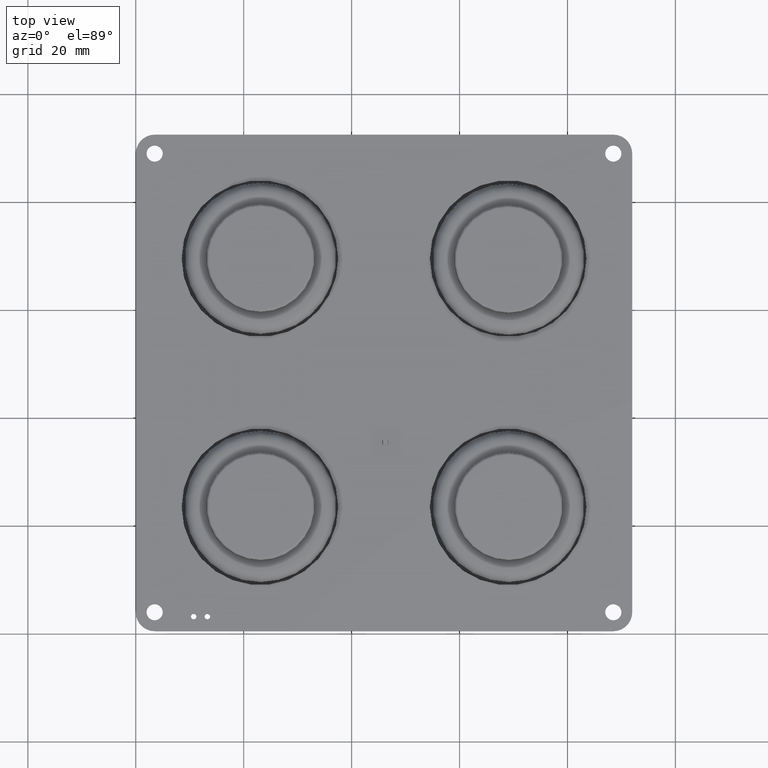
[diagram: clean part render]
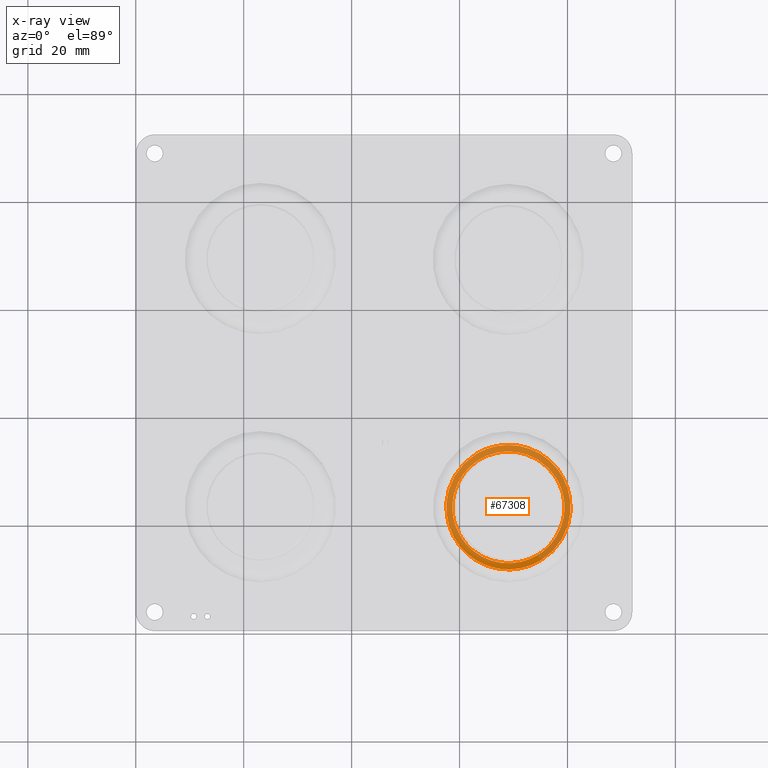
[diagram: x-ray — body ghosted, one internal face saturated and labeled with its STEP entity id]
A machine part, top view, then the same camera in x-ray: the body is ghosted and one INTERNAL B-rep face — a face not visible from any outside direction — is saturated and labeled: STEP entity #67308.
In plain terms, the highlighted face is a freeform B-spline surface patch.
Its self-contained STEP definition (entity closure, byte-faithful):
#65638 = VERTEX_POINT('',#65639);
#65639 = CARTESIAN_POINT('',(-11.5,6.500000005462,-1.54074395551E-30));
#65647 = EDGE_CURVE('',#65638,#65648,#65650,.T.);
#65648 = VERTEX_POINT('',#65649);
#65649 = CARTESIAN_POINT('',(-6.668400408273E-16,6.000000005462,-11.5));
#65650 = ( BOUNDED_CURVE() B_SPLINE_CURVE(2,(#65651,#65652,#65653,#65654
    ,#65655,#65656,#65657),.UNSPECIFIED.,.F.,.F.) 
B_SPLINE_CURVE_WITH_KNOTS((3,2,2,3),(0.,2.5E-02,5.E-02,6.25E-02),
.UNSPECIFIED.) CURVE() GEOMETRIC_REPRESENTATION_ITEM() 
RATIONAL_B_SPLINE_CURVE((1.,0.951056516295,1.,0.951056516295,1.,
0.975528258148,0.975528258148)) REPRESENTATION_ITEM('') );
#65651 = CARTESIAN_POINT('',(-11.5,6.500000005462,-1.54074395551E-30));
#65652 = CARTESIAN_POINT('',(-11.5,6.400000005462,-3.736576506678));
#65653 = CARTESIAN_POINT('',(-9.303695435312,6.300000005462,
    -6.759530401363));
#65654 = CARTESIAN_POINT('',(-7.107390870624,6.200000005462,
    -9.782484296048));
#65655 = CARTESIAN_POINT('',(-3.553695435312,6.100000005462,
    -10.93714993739));
#65656 = CARTESIAN_POINT('',(-1.821421063732,6.051254287009,-11.5));
#65657 = CARTESIAN_POINT('',(-6.668400408273E-16,6.000000005462,-11.5));
#65709 = VERTEX_POINT('',#65710);
#65710 = CARTESIAN_POINT('',(-6.668400408273E-16,4.000000005462,-11.5));
#65737 = VERTEX_POINT('',#65738);
#65738 = CARTESIAN_POINT('',(2.000520122482E-15,5.000000005462,11.5));
#65744 = EDGE_CURVE('',#65737,#65709,#65745,.T.);
#65745 = ( BOUNDED_CURVE() B_SPLINE_CURVE(2,(#65746,#65747,#65748,#65749
    ,#65750,#65751,#65752,#65753,#65754,#65755,#65756,#65757,#65758),
.UNSPECIFIED.,.F.,.F.) B_SPLINE_CURVE_WITH_KNOTS((3,2,2,2,2,2,3),(0.1875
,0.2,0.225,0.25,0.275,0.3,0.3125),.UNSPECIFIED.) CURVE() 
GEOMETRIC_REPRESENTATION_ITEM() RATIONAL_B_SPLINE_CURVE((0.975528258148,
    0.975528258148,1.,0.951056516295,1.,0.951056516295,1.,0.951056516295
    ,1.,0.951056516295,1.,0.975528258148,0.975528258148)) 
REPRESENTATION_ITEM('') );
#65746 = CARTESIAN_POINT('',(2.000520122482E-15,5.000000005462,11.5));
#65747 = CARTESIAN_POINT('',(-1.821421063732,4.948745723916,11.5));
#65748 = CARTESIAN_POINT('',(-3.553695435312,4.900000005462,
    10.937149937394));
#65749 = CARTESIAN_POINT('',(-7.107390870624,4.800000005462,
    9.782484296048));
#65750 = CARTESIAN_POINT('',(-9.303695435312,4.700000005462,
    6.759530401363));
#65751 = CARTESIAN_POINT('',(-11.5,4.600000005462,3.736576506678));
#65752 = CARTESIAN_POINT('',(-11.5,4.500000005462,-1.54074395551E-30));
#65753 = CARTESIAN_POINT('',(-11.5,4.400000005462,-3.736576506678));
#65754 = CARTESIAN_POINT('',(-9.303695435312,4.300000005462,
    -6.759530401363));
#65755 = CARTESIAN_POINT('',(-7.107390870624,4.200000005462,
    -9.782484296048));
#65756 = CARTESIAN_POINT('',(-3.553695435312,4.100000005462,
    -10.93714993739));
#65757 = CARTESIAN_POINT('',(-1.821421063732,4.051254287009,-11.5));
#65758 = CARTESIAN_POINT('',(-6.668400408273E-16,4.000000005462,-11.5));
#65769 = VERTEX_POINT('',#65770);
#65770 = CARTESIAN_POINT('',(-6.668400408273E-16,2.000000005462,-11.5));
#65797 = VERTEX_POINT('',#65798);
#65798 = CARTESIAN_POINT('',(2.000520122482E-15,3.000000005462,11.5));
#65804 = EDGE_CURVE('',#65797,#65769,#65805,.T.);
#65805 = ( BOUNDED_CURVE() B_SPLINE_CURVE(2,(#65806,#65807,#65808,#65809
    ,#65810,#65811,#65812,#65813,#65814,#65815,#65816,#65817,#65818),
.UNSPECIFIED.,.F.,.F.) B_SPLINE_CURVE_WITH_KNOTS((3,2,2,2,2,2,3),(0.4375
,0.45,0.475,0.5,0.525,0.55,0.5625),.UNSPECIFIED.) CURVE() 
GEOMETRIC_REPRESENTATION_ITEM() RATIONAL_B_SPLINE_CURVE((0.975528258148,
    0.975528258148,1.,0.951056516295,1.,0.951056516295,1.,0.951056516295
    ,1.,0.951056516295,1.,0.975528258148,0.975528258148)) 
REPRESENTATION_ITEM('') );
#65806 = CARTESIAN_POINT('',(2.000520122482E-15,3.000000005462,11.5));
#65807 = CARTESIAN_POINT('',(-1.821421063732,2.948745723916,11.5));
#65808 = CARTESIAN_POINT('',(-3.553695435312,2.900000005462,
    10.937149937394));
#65809 = CARTESIAN_POINT('',(-7.107390870624,2.800000005462,
    9.782484296048));
#65810 = CARTESIAN_POINT('',(-9.303695435312,2.700000005462,
    6.759530401363));
#65811 = CARTESIAN_POINT('',(-11.5,2.600000005462,3.736576506678));
#65812 = CARTESIAN_POINT('',(-11.5,2.500000005462,-1.54074395551E-30));
#65813 = CARTESIAN_POINT('',(-11.5,2.400000005462,-3.736576506678));
#65814 = CARTESIAN_POINT('',(-9.303695435312,2.300000005462,
    -6.759530401363));
#65815 = CARTESIAN_POINT('',(-7.107390870624,2.200000005462,
    -9.782484296048));
#65816 = CARTESIAN_POINT('',(-3.553695435312,2.100000005462,
    -10.93714993739));
#65817 = CARTESIAN_POINT('',(-1.821421063732,2.051254287009,-11.5));
#65818 = CARTESIAN_POINT('',(-6.668400408273E-16,2.000000005462,-11.5));
#65829 = VERTEX_POINT('',#65830);
#65830 = CARTESIAN_POINT('',(-0.119454989053,1.680076155466E-03,
    -11.49938223221));
#65878 = VERTEX_POINT('',#65879);
#65879 = CARTESIAN_POINT('',(2.000520122482E-15,1.000000005462,11.5));
#65885 = EDGE_CURVE('',#65878,#65829,#65886,.T.);
#65886 = ( BOUNDED_CURVE() B_SPLINE_CURVE(2,(#65887,#65888,#65889,#65890
    ,#65891,#65892,#65893,#65894,#65895,#65896,#65897,#65898,#65899),
.UNSPECIFIED.,.F.,.F.) B_SPLINE_CURVE_WITH_KNOTS((3,2,2,2,2,2,3),(0.6875
,0.7,0.725,0.75,0.775,0.8,0.81209024918),.UNSPECIFIED.) CURVE() 
GEOMETRIC_REPRESENTATION_ITEM() RATIONAL_B_SPLINE_CURVE((0.975528258148,
    0.975528258148,1.,0.951056516295,1.,0.951056516295,1.,0.951056516295
    ,1.,0.951056516295,1.,0.976330443451,0.975554553834)) 
REPRESENTATION_ITEM('') );
#65887 = CARTESIAN_POINT('',(2.000520122482E-15,1.000000005462,11.5));
#65888 = CARTESIAN_POINT('',(-1.821421063732,0.948745723916,11.5));
#65889 = CARTESIAN_POINT('',(-3.553695435312,0.900000005462,
    10.937149937394));
#65890 = CARTESIAN_POINT('',(-7.107390870624,0.800000005462,
    9.782484296048));
#65891 = CARTESIAN_POINT('',(-9.303695435312,0.700000005462,
    6.759530401363));
#65892 = CARTESIAN_POINT('',(-11.5,0.600000005462,3.736576506678));
#65893 = CARTESIAN_POINT('',(-11.5,0.500000005462,-1.54074395551E-30));
#65894 = CARTESIAN_POINT('',(-11.5,0.400000005462,-3.736576506678));
#65895 = CARTESIAN_POINT('',(-9.303695435312,0.300000005462,
    -6.759530401363));
#65896 = CARTESIAN_POINT('',(-7.107390870624,0.200000005462,
    -9.782484296048));
#65897 = CARTESIAN_POINT('',(-3.553695435312,0.100000005462,
    -10.93714993739));
#65898 = CARTESIAN_POINT('',(-1.879581769375,5.289091307078E-02,
    -11.48110244119));
#65899 = CARTESIAN_POINT('',(-0.119454989053,1.680076155466E-03,
    -11.49938223221));
#65968 = EDGE_CURVE('',#65648,#65737,#65969,.T.);
#65969 = ( BOUNDED_CURVE() B_SPLINE_CURVE(2,(#65970,#65971,#65972,#65973
    ,#65974,#65975,#65976,#65977,#65978,#65979,#65980,#65981,#65982),
.UNSPECIFIED.,.F.,.F.) B_SPLINE_CURVE_WITH_KNOTS((3,2,2,2,2,2,3),(
6.25E-02,7.5E-02,0.1,0.125,0.15,0.175,0.1875),.UNSPECIFIED.) CURVE() 
GEOMETRIC_REPRESENTATION_ITEM() RATIONAL_B_SPLINE_CURVE((0.975528258148,
    0.975528258148,1.,0.951056516295,1.,0.951056516295,1.,0.951056516295
    ,1.,0.951056516295,1.,0.975528258148,0.975528258148)) 
REPRESENTATION_ITEM('') );
#65970 = CARTESIAN_POINT('',(-6.668400408273E-16,6.000000005462,-11.5));
#65971 = CARTESIAN_POINT('',(1.821421063732,5.948745723916,-11.5));
#65972 = CARTESIAN_POINT('',(3.553695435312,5.900000005462,
    -10.93714993739));
#65973 = CARTESIAN_POINT('',(7.107390870624,5.800000005462,
    -9.782484296048));
#65974 = CARTESIAN_POINT('',(9.303695435312,5.700000005462,
    -6.759530401363));
#65975 = CARTESIAN_POINT('',(11.5,5.600000005462,-3.736576506678));
#65976 = CARTESIAN_POINT('',(11.5,5.500000005462,-1.408343819019E-15));
#65977 = CARTESIAN_POINT('',(11.5,5.400000005462,3.736576506678));
#65978 = CARTESIAN_POINT('',(9.303695435312,5.300000005462,
    6.759530401363));
#65979 = CARTESIAN_POINT('',(7.107390870624,5.200000005462,
    9.782484296048));
#65980 = CARTESIAN_POINT('',(3.553695435312,5.100000005462,
    10.937149937394));
#65981 = CARTESIAN_POINT('',(1.821421063732,5.051254287009,11.5));
#65982 = CARTESIAN_POINT('',(2.000520122482E-15,5.000000005462,11.5));
#66010 = EDGE_CURVE('',#65709,#65797,#66011,.T.);
#66011 = ( BOUNDED_CURVE() B_SPLINE_CURVE(2,(#66012,#66013,#66014,#66015
    ,#66016,#66017,#66018,#66019,#66020,#66021,#66022,#66023,#66024),
.UNSPECIFIED.,.F.,.F.) B_SPLINE_CURVE_WITH_KNOTS((3,2,2,2,2,2,3),(0.3125
,0.325,0.35,0.375,0.4,0.425,0.4375),.UNSPECIFIED.) CURVE() 
GEOMETRIC_REPRESENTATION_ITEM() RATIONAL_B_SPLINE_CURVE((0.975528258148,
    0.975528258148,1.,0.951056516295,1.,0.951056516295,1.,0.951056516295
    ,1.,0.951056516295,1.,0.975528258148,0.975528258148)) 
REPRESENTATION_ITEM('') );
#66012 = CARTESIAN_POINT('',(-6.668400408273E-16,4.000000005462,-11.5));
#66013 = CARTESIAN_POINT('',(1.821421063732,3.948745723916,-11.5));
#66014 = CARTESIAN_POINT('',(3.553695435312,3.900000005462,
    -10.93714993739));
#66015 = CARTESIAN_POINT('',(7.107390870624,3.800000005462,
    -9.782484296048));
#66016 = CARTESIAN_POINT('',(9.303695435312,3.700000005462,
    -6.759530401363));
#66017 = CARTESIAN_POINT('',(11.5,3.600000005462,-3.736576506678));
#66018 = CARTESIAN_POINT('',(11.5,3.500000005462,-1.408343819019E-15));
#66019 = CARTESIAN_POINT('',(11.5,3.400000005462,3.736576506678));
#66020 = CARTESIAN_POINT('',(9.303695435312,3.300000005462,
    6.759530401363));
#66021 = CARTESIAN_POINT('',(7.107390870624,3.200000005462,
    9.782484296048));
#66022 = CARTESIAN_POINT('',(3.553695435312,3.100000005462,
    10.937149937394));
#66023 = CARTESIAN_POINT('',(1.821421063732,3.051254287009,11.5));
#66024 = CARTESIAN_POINT('',(2.000520122482E-15,3.000000005462,11.5));
#66052 = EDGE_CURVE('',#65769,#65878,#66053,.T.);
#66053 = ( BOUNDED_CURVE() B_SPLINE_CURVE(2,(#66054,#66055,#66056,#66057
    ,#66058,#66059,#66060,#66061,#66062,#66063,#66064,#66065,#66066),
.UNSPECIFIED.,.F.,.F.) B_SPLINE_CURVE_WITH_KNOTS((3,2,2,2,2,2,3),(0.5625
,0.575,0.6,0.625,0.65,0.675,0.6875),.UNSPECIFIED.) CURVE() 
GEOMETRIC_REPRESENTATION_ITEM() RATIONAL_B_SPLINE_CURVE((0.975528258148,
    0.975528258148,1.,0.951056516295,1.,0.951056516295,1.,0.951056516295
    ,1.,0.951056516295,1.,0.975528258148,0.975528258148)) 
REPRESENTATION_ITEM('') );
#66054 = CARTESIAN_POINT('',(-6.668400408273E-16,2.000000005462,-11.5));
#66055 = CARTESIAN_POINT('',(1.821421063732,1.948745723916,-11.5));
#66056 = CARTESIAN_POINT('',(3.553695435312,1.900000005462,
    -10.93714993739));
#66057 = CARTESIAN_POINT('',(7.107390870624,1.800000005462,
    -9.782484296048));
#66058 = CARTESIAN_POINT('',(9.303695435312,1.700000005462,
    -6.759530401363));
#66059 = CARTESIAN_POINT('',(11.5,1.600000005462,-3.736576506678));
#66060 = CARTESIAN_POINT('',(11.5,1.500000005462,-1.408343819019E-15));
#66061 = CARTESIAN_POINT('',(11.5,1.400000005462,3.736576506678));
#66062 = CARTESIAN_POINT('',(9.303695435312,1.300000005462,
    6.759530401363));
#66063 = CARTESIAN_POINT('',(7.107390870624,1.200000005462,
    9.782484296048));
#66064 = CARTESIAN_POINT('',(3.553695435312,1.100000005462,
    10.937149937394));
#66065 = CARTESIAN_POINT('',(1.821421063732,1.051254287009,11.5));
#66066 = CARTESIAN_POINT('',(2.000520122482E-15,1.000000005462,11.5));
#66505 = EDGE_CURVE('',#65829,#66506,#66508,.T.);
#66506 = VERTEX_POINT('',#66507);
#66507 = CARTESIAN_POINT('',(1.936293520906E-07,0.,-11.49999999999));
#66508 = ( BOUNDED_CURVE() B_SPLINE_CURVE(2,(#66509,#66510,#66511),
.UNSPECIFIED.,.F.,.F.) B_SPLINE_CURVE_WITH_KNOTS((3,3),(0.,1.),
.PIECEWISE_BEZIER_KNOTS.) CURVE() GEOMETRIC_REPRESENTATION_ITEM() 
RATIONAL_B_SPLINE_CURVE((0.975554553834,0.975528258105,0.975528258148)) 
REPRESENTATION_ITEM('') );
#66509 = CARTESIAN_POINT('',(-0.119454989053,1.680076155466E-03,
    -11.49938223221));
#66510 = CARTESIAN_POINT('',(-5.970620489279E-02,1.680121442475E-03,
    -11.500000001));
#66511 = CARTESIAN_POINT('',(1.936293520906E-07,0.,-11.49999999999));
#66575 = VERTEX_POINT('',#66576);
#66576 = CARTESIAN_POINT('',(2.000520122482E-15,-0.999999994538,11.5));
#66581 = EDGE_CURVE('',#66506,#66575,#66582,.T.);
#66582 = ( BOUNDED_CURVE() B_SPLINE_CURVE(2,(#66583,#66584,#66585,#66586
    ,#66587,#66588,#66589,#66590,#66591,#66592,#66593,#66594,#66595),
.UNSPECIFIED.,.F.,.F.) B_SPLINE_CURVE_WITH_KNOTS((3,2,2,2,2,2,3),(
    0.812500000666,0.825,0.85,0.875,0.9,0.925,0.9375),.UNSPECIFIED.) 
CURVE() GEOMETRIC_REPRESENTATION_ITEM() RATIONAL_B_SPLINE_CURVE((
    0.975528258148,0.975528259452,1.,0.951056516295,1.,0.951056516295,1.
    ,0.951056516295,1.,0.951056516295,1.,0.975528258148,0.975528258148))
 REPRESENTATION_ITEM('') );
#66583 = CARTESIAN_POINT('',(1.936293520906E-07,0.,-11.49999999999));
#66584 = CARTESIAN_POINT('',(1.821421158355,-5.125427874715E-02,
    -11.49999996925));
#66585 = CARTESIAN_POINT('',(3.553695435312,-9.999999453763E-02,
    -10.93714993739));
#66586 = CARTESIAN_POINT('',(7.107390870624,-0.199999994538,
    -9.782484296048));
#66587 = CARTESIAN_POINT('',(9.303695435312,-0.299999994538,
    -6.759530401363));
#66588 = CARTESIAN_POINT('',(11.5,-0.399999994538,-3.736576506678));
#66589 = CARTESIAN_POINT('',(11.5,-0.499999994538,-1.408343819019E-15));
#66590 = CARTESIAN_POINT('',(11.5,-0.599999994538,3.736576506678));
#66591 = CARTESIAN_POINT('',(9.303695435312,-0.699999994538,
    6.759530401363));
#66592 = CARTESIAN_POINT('',(7.107390870624,-0.799999994538,
    9.782484296048));
#66593 = CARTESIAN_POINT('',(3.553695435312,-0.899999994538,
    10.937149937394));
#66594 = CARTESIAN_POINT('',(1.821421063732,-0.948745712991,11.5));
#66595 = CARTESIAN_POINT('',(2.000520122482E-15,-0.999999994538,11.5));
#66766 = VERTEX_POINT('',#66767);
#66767 = CARTESIAN_POINT('',(-10.41746825,7.125000002731,
    7.55927880766E-15));
#66780 = EDGE_CURVE('',#66766,#65638,#66781,.T.);
#66781 = LINE('',#66782,#66783);
#66782 = CARTESIAN_POINT('',(-10.958734125,6.812500004097,
    3.77963940383E-15));
#66783 = VECTOR('',#66784,1.);
#66784 = DIRECTION('',(-0.866025403784,-0.5,-6.047423072555E-15));
#66795 = VERTEX_POINT('',#66796);
#66796 = CARTESIAN_POINT('',(9.558040585191E-15,-0.374999997269,
    10.41746825));
#66803 = EDGE_CURVE('',#66575,#66795,#66804,.T.);
#66804 = B_SPLINE_CURVE_WITH_KNOTS('',1,(#66805,#66806),.UNSPECIFIED.,
  .F.,.F.,(2,2),(0.,1.),.PIECEWISE_BEZIER_KNOTS.);
#66805 = CARTESIAN_POINT('',(2.000520122482E-15,-0.999999994538,11.5));
#66806 = CARTESIAN_POINT('',(9.558040585191E-15,-0.374999997269,
    10.41746825));
#66824 = EDGE_CURVE('',#66766,#66795,#66825,.T.);
#66825 = ( BOUNDED_CURVE() B_SPLINE_CURVE(2,(#66826,#66827,#66828,#66829
    ,#66830,#66831,#66832,#66833,#66834,#66835,#66836,#66837,#66838,
    #66839,#66840,#66841,#66842,#66843,#66844,#66845,#66846,#66847,
    #66848,#66849,#66850,#66851,#66852,#66853,#66854,#66855,#66856,
    #66857,#66858,#66859,#66860,#66861,#66862,#66863,#66864,#66865,
    #66866,#66867,#66868,#66869,#66870,#66871,#66872,#66873,#66874,
    #66875,#66876,#66877,#66878,#66879,#66880,#66881,#66882,#66883,
    #66884,#66885,#66886,#66887,#66888,#66889,#66890,#66891,#66892,
    #66893,#66894,#66895,#66896,#66897,#66898,#66899,#66900,#66901,
#66902),.UNSPECIFIED.,.F.,.F.) B_SPLINE_CURVE_WITH_KNOTS((3,2,2,2,2,2,2,
    2,2,2,2,2,2,2,2,2,2,2,2,2,2,2,2,2,2,2,2,2,2,2,2,2,2,2,2,2,2,2,3),(0.
    ,2.5E-02,5.E-02,7.5E-02,0.1,0.125,0.15,0.175,0.2,0.225,0.25,0.275,
    0.3,0.325,0.35,0.375,0.4,0.425,0.45,0.475,0.5,0.525,0.55,0.575,0.6,
    0.625,0.65,0.675,0.7,0.725,0.75,0.775,0.8,0.825,0.85,0.875,0.9,0.925
,0.9375),.UNSPECIFIED.) CURVE() GEOMETRIC_REPRESENTATION_ITEM() 
RATIONAL_B_SPLINE_CURVE((1.,0.951056516295,1.,0.951056516295,1.,
    0.951056516295,1.,0.951056516295,1.,0.951056516295,1.,0.951056516295
    ,1.,0.951056516295,1.,0.951056516295,1.,0.951056516295,1.,
    0.951056516295,1.,0.951056516295,1.,0.951056516295,1.,0.951056516295
    ,1.,0.951056516295,1.,0.951056516295,1.,0.951056516295,1.,
    0.951056516295,1.,0.951056516295,1.,0.951056516295,1.,0.951056516295
    ,1.,0.951056516295,1.,0.951056516295,1.,0.951056516295,1.,
    0.951056516295,1.,0.951056516295,1.,0.951056516295,1.,0.951056516295
    ,1.,0.951056516295,1.,0.951056516295,1.,0.951056516295,1.,
    0.951056516295,1.,0.951056516295,1.,0.951056516295,1.,0.951056516295
    ,1.,0.951056516295,1.,0.951056516295,1.,0.951056516295,1.,
0.975528258148,0.975528258148)) REPRESENTATION_ITEM('') );
#66826 = CARTESIAN_POINT('',(-10.41746825,7.125000002731,
    7.55927880766E-15));
#66827 = CARTESIAN_POINT('',(-10.41746825,7.025000002731,-3.384840619306
    ));
#66828 = CARTESIAN_POINT('',(-8.427908852611,6.925000002731,
    -6.123234203575));
#66829 = CARTESIAN_POINT('',(-6.438349455223,6.825000002731,
    -8.861627787844));
#66830 = CARTESIAN_POINT('',(-3.219174727611,6.725000002731,
    -9.90760106246));
#66831 = CARTESIAN_POINT('',(-8.619009096296E-15,6.625000002731,
    -10.95357433707));
#66832 = CARTESIAN_POINT('',(3.219174727611,6.525000002731,
    -9.90760106246));
#66833 = CARTESIAN_POINT('',(6.438349455223,6.425000002731,
    -8.861627787844));
#66834 = CARTESIAN_POINT('',(8.427908852611,6.325000002731,
    -6.123234203575));
#66835 = CARTESIAN_POINT('',(10.41746825,6.225000002731,-3.384840619306)
  );
#66836 = CARTESIAN_POINT('',(10.41746825,6.125000002731,
    -8.835050722419E-15));
#66837 = CARTESIAN_POINT('',(10.41746825,6.025000002731,3.384840619306)
  );
#66838 = CARTESIAN_POINT('',(8.427908852611,5.925000002731,
    6.123234203575));
#66839 = CARTESIAN_POINT('',(6.438349455223,5.825000002731,
    8.861627787844));
#66840 = CARTESIAN_POINT('',(3.219174727611,5.725000002731,9.90760106246
    ));
#66841 = CARTESIAN_POINT('',(9.960435071408E-15,5.625000002731,
    10.953574337077));
#66842 = CARTESIAN_POINT('',(-3.219174727611,5.525000002731,
    9.90760106246));
#66843 = CARTESIAN_POINT('',(-6.438349455223,5.425000002731,
    8.861627787844));
#66844 = CARTESIAN_POINT('',(-8.427908852611,5.325000002731,
    6.123234203575));
#66845 = CARTESIAN_POINT('',(-10.41746825,5.225000002731,3.384840619306)
  );
#66846 = CARTESIAN_POINT('',(-10.41746825,5.125000002731,
    7.55927880766E-15));
#66847 = CARTESIAN_POINT('',(-10.41746825,5.025000002731,-3.384840619306
    ));
#66848 = CARTESIAN_POINT('',(-8.427908852611,4.925000002731,
    -6.123234203575));
#66849 = CARTESIAN_POINT('',(-6.438349455223,4.825000002731,
    -8.861627787844));
#66850 = CARTESIAN_POINT('',(-3.219174727611,4.725000002731,
    -9.90760106246));
#66851 = CARTESIAN_POINT('',(-8.619009096296E-15,4.625000002731,
    -10.95357433707));
#66852 = CARTESIAN_POINT('',(3.219174727611,4.525000002731,
    -9.90760106246));
#66853 = CARTESIAN_POINT('',(6.438349455223,4.425000002731,
    -8.861627787844));
#66854 = CARTESIAN_POINT('',(8.427908852611,4.325000002731,
    -6.123234203575));
#66855 = CARTESIAN_POINT('',(10.41746825,4.225000002731,-3.384840619306)
  );
#66856 = CARTESIAN_POINT('',(10.41746825,4.125000002731,
    -8.835050722419E-15));
#66857 = CARTESIAN_POINT('',(10.41746825,4.025000002731,3.384840619306)
  );
#66858 = CARTESIAN_POINT('',(8.427908852611,3.925000002731,
    6.123234203575));
#66859 = CARTESIAN_POINT('',(6.438349455223,3.825000002731,
    8.861627787844));
#66860 = CARTESIAN_POINT('',(3.219174727611,3.725000002731,9.90760106246
    ));
#66861 = CARTESIAN_POINT('',(9.960435071408E-15,3.625000002731,
    10.953574337077));
#66862 = CARTESIAN_POINT('',(-3.219174727611,3.525000002731,
    9.90760106246));
#66863 = CARTESIAN_POINT('',(-6.438349455223,3.425000002731,
    8.861627787844));
#66864 = CARTESIAN_POINT('',(-8.427908852611,3.325000002731,
    6.123234203575));
#66865 = CARTESIAN_POINT('',(-10.41746825,3.225000002731,3.384840619306)
  );
#66866 = CARTESIAN_POINT('',(-10.41746825,3.125000002731,
    7.55927880766E-15));
#66867 = CARTESIAN_POINT('',(-10.41746825,3.025000002731,-3.384840619306
    ));
#66868 = CARTESIAN_POINT('',(-8.427908852611,2.925000002731,
    -6.123234203575));
#66869 = CARTESIAN_POINT('',(-6.438349455223,2.825000002731,
    -8.861627787844));
#66870 = CARTESIAN_POINT('',(-3.219174727611,2.725000002731,
    -9.90760106246));
#66871 = CARTESIAN_POINT('',(-8.619009096296E-15,2.625000002731,
    -10.95357433707));
#66872 = CARTESIAN_POINT('',(3.219174727611,2.525000002731,
    -9.90760106246));
#66873 = CARTESIAN_POINT('',(6.438349455223,2.425000002731,
    -8.861627787844));
#66874 = CARTESIAN_POINT('',(8.427908852611,2.325000002731,
    -6.123234203575));
#66875 = CARTESIAN_POINT('',(10.41746825,2.225000002731,-3.384840619306)
  );
#66876 = CARTESIAN_POINT('',(10.41746825,2.125000002731,
    -8.835050722419E-15));
#66877 = CARTESIAN_POINT('',(10.41746825,2.025000002731,3.384840619306)
  );
#66878 = CARTESIAN_POINT('',(8.427908852611,1.925000002731,
    6.123234203575));
#66879 = CARTESIAN_POINT('',(6.438349455223,1.825000002731,
    8.861627787844));
#66880 = CARTESIAN_POINT('',(3.219174727611,1.725000002731,9.90760106246
    ));
#66881 = CARTESIAN_POINT('',(9.960435071408E-15,1.625000002731,
    10.953574337077));
#66882 = CARTESIAN_POINT('',(-3.219174727611,1.525000002731,
    9.90760106246));
#66883 = CARTESIAN_POINT('',(-6.438349455223,1.425000002731,
    8.861627787844));
#66884 = CARTESIAN_POINT('',(-8.427908852611,1.325000002731,
    6.123234203575));
#66885 = CARTESIAN_POINT('',(-10.41746825,1.225000002731,3.384840619306)
  );
#66886 = CARTESIAN_POINT('',(-10.41746825,1.125000002731,
    7.55927880766E-15));
#66887 = CARTESIAN_POINT('',(-10.41746825,1.025000002731,-3.384840619306
    ));
#66888 = CARTESIAN_POINT('',(-8.427908852611,0.925000002731,
    -6.123234203575));
#66889 = CARTESIAN_POINT('',(-6.438349455223,0.825000002731,
    -8.861627787844));
#66890 = CARTESIAN_POINT('',(-3.219174727611,0.725000002731,
    -9.90760106246));
#66891 = CARTESIAN_POINT('',(-8.619009096296E-15,0.625000002731,
    -10.95357433707));
#66892 = CARTESIAN_POINT('',(3.219174727611,0.525000002731,
    -9.90760106246));
#66893 = CARTESIAN_POINT('',(6.438349455223,0.425000002731,
    -8.861627787844));
#66894 = CARTESIAN_POINT('',(8.427908852611,0.325000002731,
    -6.123234203575));
#66895 = CARTESIAN_POINT('',(10.41746825,0.225000002731,-3.384840619306)
  );
#66896 = CARTESIAN_POINT('',(10.41746825,0.125000002731,
    -8.835050722419E-15));
#66897 = CARTESIAN_POINT('',(10.41746825,2.500000273119E-02,
    3.384840619306));
#66898 = CARTESIAN_POINT('',(8.427908852611,-7.499999726881E-02,
    6.123234203575));
#66899 = CARTESIAN_POINT('',(6.438349455223,-0.174999997269,
    8.861627787844));
#66900 = CARTESIAN_POINT('',(3.219174727611,-0.274999997269,
    9.90760106246));
#66901 = CARTESIAN_POINT('',(1.649964878375,-0.323745715722,10.41746825)
  );
#66902 = CARTESIAN_POINT('',(9.558040585191E-15,-0.374999997269,
    10.41746825));
#67308 = ADVANCED_FACE('',(#67309),#67323,.T.);
#67309 = FACE_BOUND('',#67310,.T.);
#67310 = EDGE_LOOP('',(#67311,#67312,#67313,#67314,#67315,#67316,#67317,
    #67318,#67319,#67320,#67321,#67322));
#67311 = ORIENTED_EDGE('',*,*,#66780,.T.);
#67312 = ORIENTED_EDGE('',*,*,#65647,.T.);
#67313 = ORIENTED_EDGE('',*,*,#65968,.T.);
#67314 = ORIENTED_EDGE('',*,*,#65744,.T.);
#67315 = ORIENTED_EDGE('',*,*,#66010,.T.);
#67316 = ORIENTED_EDGE('',*,*,#65804,.T.);
#67317 = ORIENTED_EDGE('',*,*,#66052,.T.);
#67318 = ORIENTED_EDGE('',*,*,#65885,.T.);
#67319 = ORIENTED_EDGE('',*,*,#66505,.T.);
#67320 = ORIENTED_EDGE('',*,*,#66581,.T.);
#67321 = ORIENTED_EDGE('',*,*,#66803,.T.);
#67322 = ORIENTED_EDGE('',*,*,#66824,.F.);
#67323 = ( BOUNDED_SURFACE() B_SPLINE_SURFACE(1,2,(
    (#67324,#67325,#67326,#67327,#67328,#67329,#67330,#67331,#67332
      ,#67333,#67334,#67335,#67336,#67337,#67338,#67339,#67340,#67341
      ,#67342,#67343,#67344,#67345,#67346,#67347,#67348,#67349,#67350
      ,#67351,#67352,#67353,#67354,#67355,#67356,#67357,#67358,#67359
      ,#67360,#67361,#67362,#67363,#67364,#67365,#67366,#67367,#67368
      ,#67369,#67370,#67371,#67372,#67373,#67374,#67375,#67376,#67377
      ,#67378,#67379,#67380,#67381,#67382,#67383,#67384,#67385,#67386
      ,#67387,#67388,#67389,#67390,#67391,#67392,#67393,#67394,#67395
      ,#67396,#67397,#67398,#67399,#67400)
    ,(#67401,#67402,#67403,#67404,#67405,#67406,#67407,#67408,#67409
      ,#67410,#67411,#67412,#67413,#67414,#67415,#67416,#67417,#67418
      ,#67419,#67420,#67421,#67422,#67423,#67424,#67425,#67426,#67427
      ,#67428,#67429,#67430,#67431,#67432,#67433,#67434,#67435,#67436
      ,#67437,#67438,#67439,#67440,#67441,#67442,#67443,#67444,#67445
      ,#67446,#67447,#67448,#67449,#67450,#67451,#67452,#67453,#67454
      ,#67455,#67456,#67457,#67458,#67459,#67460,#67461,#67462,#67463
      ,#67464,#67465,#67466,#67467,#67468,#67469,#67470,#67471,#67472
      ,#67473,#67474,#67475,#67476,#67477
)),.UNSPECIFIED.,.F.,.F.,.F.) B_SPLINE_SURFACE_WITH_KNOTS((2,2),(3,2,2,2
    ,2,2,2,2,2,2,2,2,2,2,2,2,2,2,2,2,2,2,2,2,2,2,2,2,2,2,2,2,2,2,2,2,2,2
    ,3),(0.,1.),(0.,2.5E-02,5.E-02,7.5E-02,0.1,0.125,0.15,0.175,0.2,
    0.225,0.25,0.275,0.3,0.325,0.35,0.375,0.4,0.425,0.45,0.475,0.5,0.525
    ,0.55,0.575,0.6,0.625,0.65,0.675,0.7,0.725,0.75,0.775,0.8,0.825,0.85
    ,0.875,0.9,0.925,0.9375),.UNSPECIFIED.) 
GEOMETRIC_REPRESENTATION_ITEM() RATIONAL_B_SPLINE_SURFACE((
    (1.,0.951056516295,1.,0.951056516295,1.,0.951056516295,1.
      ,0.951056516295,1.,0.951056516295,1.,0.951056516295,1.
      ,0.951056516295,1.,0.951056516295,1.,0.951056516295,1.
      ,0.951056516295,1.,0.951056516295,1.,0.951056516295,1.
      ,0.951056516295,1.,0.951056516295,1.,0.951056516295,1.
      ,0.951056516295,1.,0.951056516295,1.,0.951056516295,1.
      ,0.951056516295,1.,0.951056516295,1.,0.951056516295,1.
      ,0.951056516295,1.,0.951056516295,1.,0.951056516295,1.
      ,0.951056516295,1.,0.951056516295,1.,0.951056516295,1.
      ,0.951056516295,1.,0.951056516295,1.,0.951056516295,1.
      ,0.951056516295,1.,0.951056516295,1.,0.951056516295,1.
      ,0.951056516295,1.,0.951056516295,1.,0.951056516295,1.
      ,0.951056516295,1.,0.975528258148,0.975528258148)
    ,(1.,0.951056516295,1.,0.951056516295,1.,0.951056516295,1.
      ,0.951056516295,1.,0.951056516295,1.,0.951056516295,1.
      ,0.951056516295,1.,0.951056516295,1.,0.951056516295,1.
      ,0.951056516295,1.,0.951056516295,1.,0.951056516295,1.
      ,0.951056516295,1.,0.951056516295,1.,0.951056516295,1.
      ,0.951056516295,1.,0.951056516295,1.,0.951056516295,1.
      ,0.951056516295,1.,0.951056516295,1.,0.951056516295,1.
      ,0.951056516295,1.,0.951056516295,1.,0.951056516295,1.
      ,0.951056516295,1.,0.951056516295,1.,0.951056516295,1.
      ,0.951056516295,1.,0.951056516295,1.,0.951056516295,1.
      ,0.951056516295,1.,0.951056516295,1.,0.951056516295,1.
      ,0.951056516295,1.,0.951056516295,1.,0.951056516295,1.
      ,0.951056516295,1.,0.975528258148,0.975528258148
))) REPRESENTATION_ITEM('') SURFACE() );
#67324 = CARTESIAN_POINT('',(-10.41746825,7.125000002731,
    7.55927880766E-15));
#67325 = CARTESIAN_POINT('',(-10.41746825,7.025000002731,-3.384840619306
    ));
#67326 = CARTESIAN_POINT('',(-8.427908852611,6.925000002731,
    -6.123234203575));
#67327 = CARTESIAN_POINT('',(-6.438349455223,6.825000002731,
    -8.861627787844));
#67328 = CARTESIAN_POINT('',(-3.219174727611,6.725000002731,
    -9.90760106246));
#67329 = CARTESIAN_POINT('',(-8.619009096296E-15,6.625000002731,
    -10.95357433707));
#67330 = CARTESIAN_POINT('',(3.219174727611,6.525000002731,
    -9.90760106246));
#67331 = CARTESIAN_POINT('',(6.438349455223,6.425000002731,
    -8.861627787844));
#67332 = CARTESIAN_POINT('',(8.427908852611,6.325000002731,
    -6.123234203575));
#67333 = CARTESIAN_POINT('',(10.41746825,6.225000002731,-3.384840619306)
  );
#67334 = CARTESIAN_POINT('',(10.41746825,6.125000002731,
    -8.835050722419E-15));
#67335 = CARTESIAN_POINT('',(10.41746825,6.025000002731,3.384840619306)
  );
#67336 = CARTESIAN_POINT('',(8.427908852611,5.925000002731,
    6.123234203575));
#67337 = CARTESIAN_POINT('',(6.438349455223,5.825000002731,
    8.861627787844));
#67338 = CARTESIAN_POINT('',(3.219174727611,5.725000002731,9.90760106246
    ));
#67339 = CARTESIAN_POINT('',(9.960435071408E-15,5.625000002731,
    10.953574337077));
#67340 = CARTESIAN_POINT('',(-3.219174727611,5.525000002731,
    9.90760106246));
#67341 = CARTESIAN_POINT('',(-6.438349455223,5.425000002731,
    8.861627787844));
#67342 = CARTESIAN_POINT('',(-8.427908852611,5.325000002731,
    6.123234203575));
#67343 = CARTESIAN_POINT('',(-10.41746825,5.225000002731,3.384840619306)
  );
#67344 = CARTESIAN_POINT('',(-10.41746825,5.125000002731,
    7.55927880766E-15));
#67345 = CARTESIAN_POINT('',(-10.41746825,5.025000002731,-3.384840619306
    ));
#67346 = CARTESIAN_POINT('',(-8.427908852611,4.925000002731,
    -6.123234203575));
#67347 = CARTESIAN_POINT('',(-6.438349455223,4.825000002731,
    -8.861627787844));
#67348 = CARTESIAN_POINT('',(-3.219174727611,4.725000002731,
    -9.90760106246));
#67349 = CARTESIAN_POINT('',(-8.619009096296E-15,4.625000002731,
    -10.95357433707));
#67350 = CARTESIAN_POINT('',(3.219174727611,4.525000002731,
    -9.90760106246));
#67351 = CARTESIAN_POINT('',(6.438349455223,4.425000002731,
    -8.861627787844));
#67352 = CARTESIAN_POINT('',(8.427908852611,4.325000002731,
    -6.123234203575));
#67353 = CARTESIAN_POINT('',(10.41746825,4.225000002731,-3.384840619306)
  );
#67354 = CARTESIAN_POINT('',(10.41746825,4.125000002731,
    -8.835050722419E-15));
#67355 = CARTESIAN_POINT('',(10.41746825,4.025000002731,3.384840619306)
  );
#67356 = CARTESIAN_POINT('',(8.427908852611,3.925000002731,
    6.123234203575));
#67357 = CARTESIAN_POINT('',(6.438349455223,3.825000002731,
    8.861627787844));
#67358 = CARTESIAN_POINT('',(3.219174727611,3.725000002731,9.90760106246
    ));
#67359 = CARTESIAN_POINT('',(9.960435071408E-15,3.625000002731,
    10.953574337077));
#67360 = CARTESIAN_POINT('',(-3.219174727611,3.525000002731,
    9.90760106246));
#67361 = CARTESIAN_POINT('',(-6.438349455223,3.425000002731,
    8.861627787844));
#67362 = CARTESIAN_POINT('',(-8.427908852611,3.325000002731,
    6.123234203575));
#67363 = CARTESIAN_POINT('',(-10.41746825,3.225000002731,3.384840619306)
  );
#67364 = CARTESIAN_POINT('',(-10.41746825,3.125000002731,
    7.55927880766E-15));
#67365 = CARTESIAN_POINT('',(-10.41746825,3.025000002731,-3.384840619306
    ));
#67366 = CARTESIAN_POINT('',(-8.427908852611,2.925000002731,
    -6.123234203575));
#67367 = CARTESIAN_POINT('',(-6.438349455223,2.825000002731,
    -8.861627787844));
#67368 = CARTESIAN_POINT('',(-3.219174727611,2.725000002731,
    -9.90760106246));
#67369 = CARTESIAN_POINT('',(-8.619009096296E-15,2.625000002731,
    -10.95357433707));
#67370 = CARTESIAN_POINT('',(3.219174727611,2.525000002731,
    -9.90760106246));
#67371 = CARTESIAN_POINT('',(6.438349455223,2.425000002731,
    -8.861627787844));
#67372 = CARTESIAN_POINT('',(8.427908852611,2.325000002731,
    -6.123234203575));
#67373 = CARTESIAN_POINT('',(10.41746825,2.225000002731,-3.384840619306)
  );
#67374 = CARTESIAN_POINT('',(10.41746825,2.125000002731,
    -8.835050722419E-15));
#67375 = CARTESIAN_POINT('',(10.41746825,2.025000002731,3.384840619306)
  );
#67376 = CARTESIAN_POINT('',(8.427908852611,1.925000002731,
    6.123234203575));
#67377 = CARTESIAN_POINT('',(6.438349455223,1.825000002731,
    8.861627787844));
#67378 = CARTESIAN_POINT('',(3.219174727611,1.725000002731,9.90760106246
    ));
#67379 = CARTESIAN_POINT('',(9.960435071408E-15,1.625000002731,
    10.953574337077));
#67380 = CARTESIAN_POINT('',(-3.219174727611,1.525000002731,
    9.90760106246));
#67381 = CARTESIAN_POINT('',(-6.438349455223,1.425000002731,
    8.861627787844));
#67382 = CARTESIAN_POINT('',(-8.427908852611,1.325000002731,
    6.123234203575));
#67383 = CARTESIAN_POINT('',(-10.41746825,1.225000002731,3.384840619306)
  );
#67384 = CARTESIAN_POINT('',(-10.41746825,1.125000002731,
    7.55927880766E-15));
#67385 = CARTESIAN_POINT('',(-10.41746825,1.025000002731,-3.384840619306
    ));
#67386 = CARTESIAN_POINT('',(-8.427908852611,0.925000002731,
    -6.123234203575));
#67387 = CARTESIAN_POINT('',(-6.438349455223,0.825000002731,
    -8.861627787844));
#67388 = CARTESIAN_POINT('',(-3.219174727611,0.725000002731,
    -9.90760106246));
#67389 = CARTESIAN_POINT('',(-8.619009096296E-15,0.625000002731,
    -10.95357433707));
#67390 = CARTESIAN_POINT('',(3.219174727611,0.525000002731,
    -9.90760106246));
#67391 = CARTESIAN_POINT('',(6.438349455223,0.425000002731,
    -8.861627787844));
#67392 = CARTESIAN_POINT('',(8.427908852611,0.325000002731,
    -6.123234203575));
#67393 = CARTESIAN_POINT('',(10.41746825,0.225000002731,-3.384840619306)
  );
#67394 = CARTESIAN_POINT('',(10.41746825,0.125000002731,
    -8.835050722419E-15));
#67395 = CARTESIAN_POINT('',(10.41746825,2.500000273119E-02,
    3.384840619306));
#67396 = CARTESIAN_POINT('',(8.427908852611,-7.499999726881E-02,
    6.123234203575));
#67397 = CARTESIAN_POINT('',(6.438349455223,-0.174999997269,
    8.861627787844));
#67398 = CARTESIAN_POINT('',(3.219174727611,-0.274999997269,
    9.90760106246));
#67399 = CARTESIAN_POINT('',(1.649964878375,-0.323745715722,10.41746825)
  );
#67400 = CARTESIAN_POINT('',(9.558040585191E-15,-0.374999997269,
    10.41746825));
#67401 = CARTESIAN_POINT('',(-11.5,6.500000005462,-1.54074395551E-30));
#67402 = CARTESIAN_POINT('',(-11.5,6.400000005462,-3.736576506678));
#67403 = CARTESIAN_POINT('',(-9.303695435312,6.300000005462,
    -6.759530401363));
#67404 = CARTESIAN_POINT('',(-7.107390870624,6.200000005462,
    -9.782484296048));
#67405 = CARTESIAN_POINT('',(-3.553695435312,6.100000005462,
    -10.93714993739));
#67406 = CARTESIAN_POINT('',(-7.404101622192E-16,6.000000005462,
    -12.09181557874));
#67407 = CARTESIAN_POINT('',(3.553695435312,5.900000005462,
    -10.93714993739));
#67408 = CARTESIAN_POINT('',(7.107390870624,5.800000005462,
    -9.782484296048));
#67409 = CARTESIAN_POINT('',(9.303695435312,5.700000005462,
    -6.759530401363));
#67410 = CARTESIAN_POINT('',(11.5,5.600000005462,-3.736576506678));
#67411 = CARTESIAN_POINT('',(11.5,5.500000005462,-1.408343819019E-15));
#67412 = CARTESIAN_POINT('',(11.5,5.400000005462,3.736576506678));
#67413 = CARTESIAN_POINT('',(9.303695435312,5.300000005462,
    6.759530401363));
#67414 = CARTESIAN_POINT('',(7.107390870624,5.200000005462,
    9.782484296048));
#67415 = CARTESIAN_POINT('',(3.553695435312,5.100000005462,
    10.937149937394));
#67416 = CARTESIAN_POINT('',(2.221230486658E-15,5.000000005462,
    12.09181557874));
#67417 = CARTESIAN_POINT('',(-3.553695435312,4.900000005462,
    10.937149937394));
#67418 = CARTESIAN_POINT('',(-7.107390870624,4.800000005462,
    9.782484296048));
#67419 = CARTESIAN_POINT('',(-9.303695435312,4.700000005462,
    6.759530401363));
#67420 = CARTESIAN_POINT('',(-11.5,4.600000005462,3.736576506678));
#67421 = CARTESIAN_POINT('',(-11.5,4.500000005462,-1.54074395551E-30));
#67422 = CARTESIAN_POINT('',(-11.5,4.400000005462,-3.736576506678));
#67423 = CARTESIAN_POINT('',(-9.303695435312,4.300000005462,
    -6.759530401363));
#67424 = CARTESIAN_POINT('',(-7.107390870624,4.200000005462,
    -9.782484296048));
#67425 = CARTESIAN_POINT('',(-3.553695435312,4.100000005462,
    -10.93714993739));
#67426 = CARTESIAN_POINT('',(-7.404101622192E-16,4.000000005462,
    -12.09181557874));
#67427 = CARTESIAN_POINT('',(3.553695435312,3.900000005462,
    -10.93714993739));
#67428 = CARTESIAN_POINT('',(7.107390870624,3.800000005462,
    -9.782484296048));
#67429 = CARTESIAN_POINT('',(9.303695435312,3.700000005462,
    -6.759530401363));
#67430 = CARTESIAN_POINT('',(11.5,3.600000005462,-3.736576506678));
#67431 = CARTESIAN_POINT('',(11.5,3.500000005462,-1.408343819019E-15));
#67432 = CARTESIAN_POINT('',(11.5,3.400000005462,3.736576506678));
#67433 = CARTESIAN_POINT('',(9.303695435312,3.300000005462,
    6.759530401363));
#67434 = CARTESIAN_POINT('',(7.107390870624,3.200000005462,
    9.782484296048));
#67435 = CARTESIAN_POINT('',(3.553695435312,3.100000005462,
    10.937149937394));
#67436 = CARTESIAN_POINT('',(2.221230486658E-15,3.000000005462,
    12.09181557874));
#67437 = CARTESIAN_POINT('',(-3.553695435312,2.900000005462,
    10.937149937394));
#67438 = CARTESIAN_POINT('',(-7.107390870624,2.800000005462,
    9.782484296048));
#67439 = CARTESIAN_POINT('',(-9.303695435312,2.700000005462,
    6.759530401363));
#67440 = CARTESIAN_POINT('',(-11.5,2.600000005462,3.736576506678));
#67441 = CARTESIAN_POINT('',(-11.5,2.500000005462,-1.54074395551E-30));
#67442 = CARTESIAN_POINT('',(-11.5,2.400000005462,-3.736576506678));
#67443 = CARTESIAN_POINT('',(-9.303695435312,2.300000005462,
    -6.759530401363));
#67444 = CARTESIAN_POINT('',(-7.107390870624,2.200000005462,
    -9.782484296048));
#67445 = CARTESIAN_POINT('',(-3.553695435312,2.100000005462,
    -10.93714993739));
#67446 = CARTESIAN_POINT('',(-7.404101622192E-16,2.000000005462,
    -12.09181557874));
#67447 = CARTESIAN_POINT('',(3.553695435312,1.900000005462,
    -10.93714993739));
#67448 = CARTESIAN_POINT('',(7.107390870624,1.800000005462,
    -9.782484296048));
#67449 = CARTESIAN_POINT('',(9.303695435312,1.700000005462,
    -6.759530401363));
#67450 = CARTESIAN_POINT('',(11.5,1.600000005462,-3.736576506678));
#67451 = CARTESIAN_POINT('',(11.5,1.500000005462,-1.408343819019E-15));
#67452 = CARTESIAN_POINT('',(11.5,1.400000005462,3.736576506678));
#67453 = CARTESIAN_POINT('',(9.303695435312,1.300000005462,
    6.759530401363));
#67454 = CARTESIAN_POINT('',(7.107390870624,1.200000005462,
    9.782484296048));
#67455 = CARTESIAN_POINT('',(3.553695435312,1.100000005462,
    10.937149937394));
#67456 = CARTESIAN_POINT('',(2.221230486658E-15,1.000000005462,
    12.09181557874));
#67457 = CARTESIAN_POINT('',(-3.553695435312,0.900000005462,
    10.937149937394));
#67458 = CARTESIAN_POINT('',(-7.107390870624,0.800000005462,
    9.782484296048));
#67459 = CARTESIAN_POINT('',(-9.303695435312,0.700000005462,
    6.759530401363));
#67460 = CARTESIAN_POINT('',(-11.5,0.600000005462,3.736576506678));
#67461 = CARTESIAN_POINT('',(-11.5,0.500000005462,-1.54074395551E-30));
#67462 = CARTESIAN_POINT('',(-11.5,0.400000005462,-3.736576506678));
#67463 = CARTESIAN_POINT('',(-9.303695435312,0.300000005462,
    -6.759530401363));
#67464 = CARTESIAN_POINT('',(-7.107390870624,0.200000005462,
    -9.782484296048));
#67465 = CARTESIAN_POINT('',(-3.553695435312,0.100000005462,
    -10.93714993739));
#67466 = CARTESIAN_POINT('',(-7.404101622192E-16,5.462373608989E-09,
    -12.09181557874));
#67467 = CARTESIAN_POINT('',(3.553695435312,-9.999999453763E-02,
    -10.93714993739));
#67468 = CARTESIAN_POINT('',(7.107390870624,-0.199999994538,
    -9.782484296048));
#67469 = CARTESIAN_POINT('',(9.303695435312,-0.299999994538,
    -6.759530401363));
#67470 = CARTESIAN_POINT('',(11.5,-0.399999994538,-3.736576506678));
#67471 = CARTESIAN_POINT('',(11.5,-0.499999994538,-1.408343819019E-15));
#67472 = CARTESIAN_POINT('',(11.5,-0.599999994538,3.736576506678));
#67473 = CARTESIAN_POINT('',(9.303695435312,-0.699999994538,
    6.759530401363));
#67474 = CARTESIAN_POINT('',(7.107390870624,-0.799999994538,
    9.782484296048));
#67475 = CARTESIAN_POINT('',(3.553695435312,-0.899999994538,
    10.937149937394));
#67476 = CARTESIAN_POINT('',(1.821421063732,-0.948745712991,11.5));
#67477 = CARTESIAN_POINT('',(2.000520122482E-15,-0.999999994538,11.5));